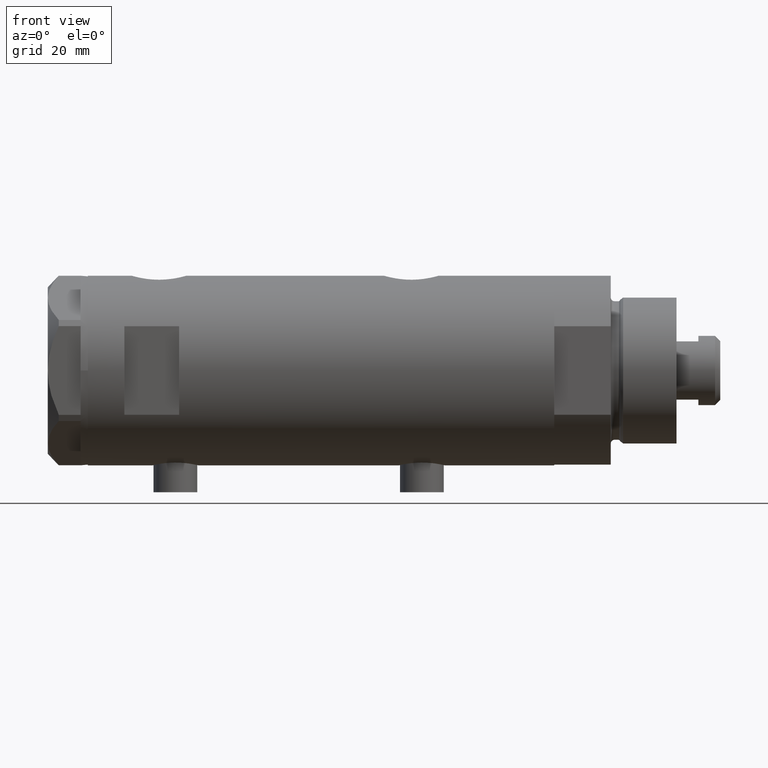
[diagram: clean part render]
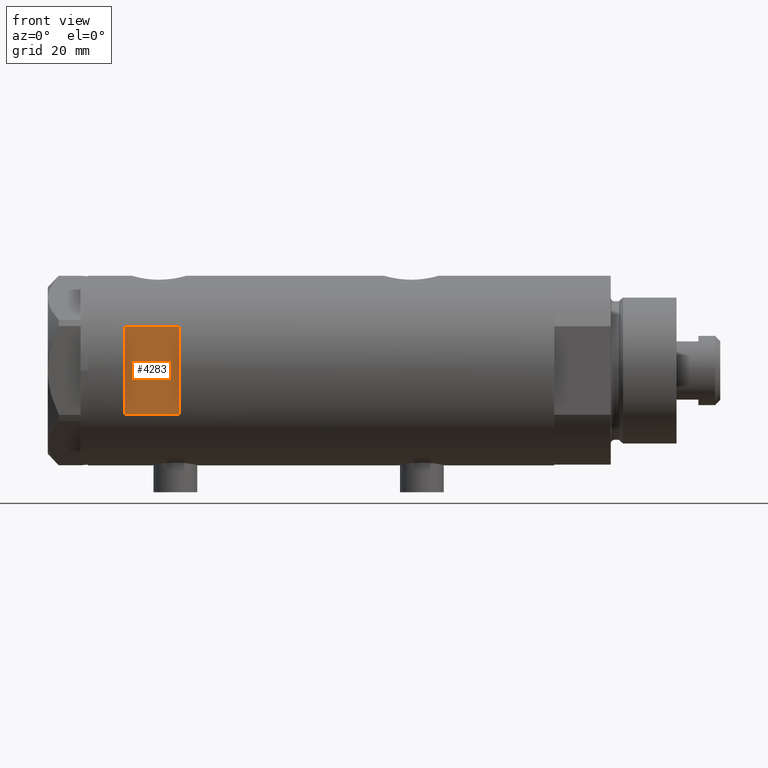
[diagram: same view with one face highlighted and labeled with its STEP entity id]
A machine part, front view. The second image highlights one B-rep face of the part: STEP entity #4283.
In plain terms, the highlighted planar face has unit normal (-0, 1, 0).
Its self-contained STEP definition (entity closure, byte-faithful):
#89 = ORIENTED_EDGE ( 'NONE', *, *, #2774, .T. ) ;
#110 = CARTESIAN_POINT ( 'NONE',  ( 12.12435565298214080, -23.00000000000000355, 38.94999999999999574 ) ) ;
#116 = DIRECTION ( 'NONE',  ( 1.000000000000000000, -0.000000000000000000, -0.000000000000000000 ) ) ;
#125 = AXIS2_PLACEMENT_3D ( 'NONE', #1367, #3684, #2839 ) ;
#386 = VERTEX_POINT ( 'NONE', #2544 ) ;
#838 = DIRECTION ( 'NONE',  ( -0.000000000000000000, -0.000000000000000000, -1.000000000000000000 ) ) ;
#968 = VECTOR ( 'NONE', #116, 1000.000000000000000 ) ;
#972 = FACE_OUTER_BOUND ( 'NONE', #4330, .T. ) ;
#998 = CARTESIAN_POINT ( 'NONE',  ( -26.00000000000000355, -23.00000000000000355, 53.94999999999999574 ) ) ;
#1026 = VECTOR ( 'NONE', #838, 1000.000000000000000 ) ;
#1202 = VECTOR ( 'NONE', #3932, 1000.000000000000000 ) ;
#1324 = CARTESIAN_POINT ( 'NONE',  ( -12.12435565298214080, -23.00000000000000355, 53.94999999999999574 ) ) ;
#1367 = CARTESIAN_POINT ( 'NONE',  ( -26.00000000000000355, -23.00000000000000355, 53.94999999999999574 ) ) ;
#1511 = LINE ( 'NONE', #3121, #1202 ) ;
#1684 = VERTEX_POINT ( 'NONE', #1906 ) ;
#1699 = LINE ( 'NONE', #2118, #968 ) ;
#1906 = CARTESIAN_POINT ( 'NONE',  ( -12.12435565298214080, -23.00000000000000355, 38.94999999999999574 ) ) ;
#1966 = VECTOR ( 'NONE', #5073, 1000.000000000000000 ) ;
#2105 = LINE ( 'NONE', #2849, #1026 ) ;
#2118 = CARTESIAN_POINT ( 'NONE',  ( -26.00000000000000355, -23.00000000000000355, 38.94999999999999574 ) ) ;
#2358 = EDGE_CURVE ( 'NONE', #4875, #1684, #2105, .T. ) ;
#2544 = CARTESIAN_POINT ( 'NONE',  ( 12.12435565298214080, -23.00000000000000355, 53.94999999999999574 ) ) ;
#2774 = EDGE_CURVE ( 'NONE', #3049, #386, #1511, .T. ) ;
#2839 = DIRECTION ( 'NONE',  ( 0.000000000000000000, -0.000000000000000000, 1.000000000000000000 ) ) ;
#2849 = CARTESIAN_POINT ( 'NONE',  ( -12.12435565298214080, -23.00000000000000355, -63.95000000000000995 ) ) ;
#2871 = PLANE ( 'NONE',  #125 ) ;
#3049 = VERTEX_POINT ( 'NONE', #110 ) ;
#3121 = CARTESIAN_POINT ( 'NONE',  ( 12.12435565298214080, -23.00000000000000355, -63.95000000000000995 ) ) ;
#3489 = ORIENTED_EDGE ( 'NONE', *, *, #4520, .T. ) ;
#3684 = DIRECTION ( 'NONE',  ( 0.000000000000000000, 1.000000000000000000, 0.000000000000000000 ) ) ;
#3755 = ORIENTED_EDGE ( 'NONE', *, *, #2358, .T. ) ;
#3932 = DIRECTION ( 'NONE',  ( 0.000000000000000000, 0.000000000000000000, 1.000000000000000000 ) ) ;
#4014 = EDGE_CURVE ( 'NONE', #4875, #386, #5100, .T. ) ;
#4213 = ORIENTED_EDGE ( 'NONE', *, *, #4014, .F. ) ;
#4283 = ADVANCED_FACE ( 'NONE', ( #972 ), #2871, .F. ) ;
#4330 = EDGE_LOOP ( 'NONE', ( #3755, #3489, #89, #4213 ) ) ;
#4520 = EDGE_CURVE ( 'NONE', #1684, #3049, #1699, .T. ) ;
#4875 = VERTEX_POINT ( 'NONE', #1324 ) ;
#5073 = DIRECTION ( 'NONE',  ( 1.000000000000000000, -0.000000000000000000, -0.000000000000000000 ) ) ;
#5100 = LINE ( 'NONE', #998, #1966 ) ;